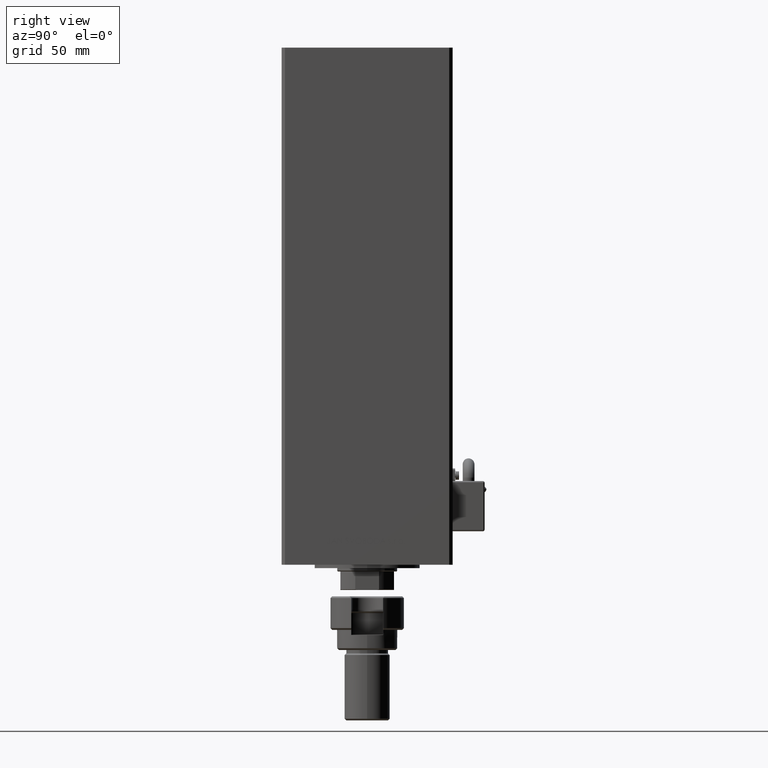
[diagram: clean part render]
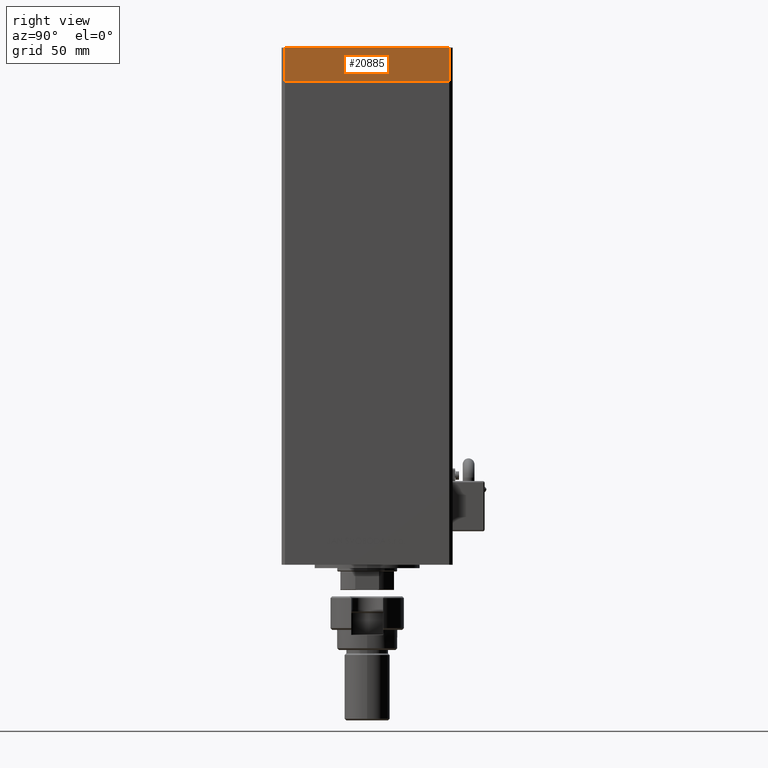
[diagram: same view with one face highlighted and labeled with its STEP entity id]
A machine part, right view. The second image highlights one B-rep face of the part: STEP entity #20885.
In plain terms, the highlighted planar face has unit normal (1, 0, 0).
Its self-contained STEP definition (entity closure, byte-faithful):
#244 = DIRECTION ( 'NONE',  ( -7.080503983578803823E-16, 1.000000000000000000, 0.000000000000000000 ) ) ;
#768 = LINE ( 'NONE', #4555, #3781 ) ;
#1076 = ORIENTED_EDGE ( 'NONE', *, *, #20227, .T. ) ;
#1704 = FACE_OUTER_BOUND ( 'NONE', #8888, .T. ) ;
#2904 = EDGE_CURVE ( 'NONE', #5529, #46818, #36944, .T. ) ;
#3781 = VECTOR ( 'NONE', #244, 1000.000000000000000 ) ;
#4555 = CARTESIAN_POINT ( 'NONE',  ( 60.00000000000001421, -48.99999999999999289, -20.00000000000000000 ) ) ;
#5219 = DIRECTION ( 'NONE',  ( 1.000000000000000000, 7.080503983578804809E-16, -0.000000000000000000 ) ) ;
#5529 = VERTEX_POINT ( 'NONE', #18492 ) ;
#7040 = DIRECTION ( 'NONE',  ( -7.080503983578803823E-16, 1.000000000000000000, 0.000000000000000000 ) ) ;
#8888 = EDGE_LOOP ( 'NONE', ( #47791, #52140, #1076, #15662 ) ) ;
#9004 = CARTESIAN_POINT ( 'NONE',  ( 60.00000000000001421, -48.99999999999999289, -20.00000000000000000 ) ) ;
#11064 = CARTESIAN_POINT ( 'NONE',  ( 60.00000000000001421, -48.99999999999999289, 0.000000000000000000 ) ) ;
#15662 = ORIENTED_EDGE ( 'NONE', *, *, #41842, .T. ) ;
#18148 = PLANE ( 'NONE',  #21026 ) ;
#18492 = CARTESIAN_POINT ( 'NONE',  ( 60.00000000000001421, -48.99999999999999289, -20.00000000000000000 ) ) ;
#18841 = VECTOR ( 'NONE', #47625, 1000.000000000000000 ) ;
#20227 = EDGE_CURVE ( 'NONE', #5529, #50184, #768, .T. ) ;
#20885 = ADVANCED_FACE ( 'NONE', ( #1704 ), #18148, .T. ) ;
#21026 = AXIS2_PLACEMENT_3D ( 'NONE', #9004, #5219, #25438 ) ;
#22410 = LINE ( 'NONE', #11064, #36877 ) ;
#23625 = LINE ( 'NONE', #44098, #18841 ) ;
#25438 = DIRECTION ( 'NONE',  ( -7.080503983578804809E-16, 1.000000000000000000, 0.000000000000000000 ) ) ;
#27110 = CARTESIAN_POINT ( 'NONE',  ( 59.99999999999994316, 49.00000000000000000, 0.000000000000000000 ) ) ;
#30336 = CARTESIAN_POINT ( 'NONE',  ( 60.00000000000001421, -48.99999999999999289, 0.000000000000000000 ) ) ;
#36605 = EDGE_CURVE ( 'NONE', #46818, #39036, #22410, .T. ) ;
#36877 = VECTOR ( 'NONE', #7040, 1000.000000000000000 ) ;
#36944 = LINE ( 'NONE', #37739, #47301 ) ;
#37739 = CARTESIAN_POINT ( 'NONE',  ( 60.00000000000001421, -48.99999999999999289, -20.00000000000000000 ) ) ;
#39036 = VERTEX_POINT ( 'NONE', #27110 ) ;
#41842 = EDGE_CURVE ( 'NONE', #50184, #39036, #23625, .T. ) ;
#44098 = CARTESIAN_POINT ( 'NONE',  ( 59.99999999999994316, 49.00000000000000000, -20.00000000000000000 ) ) ;
#45043 = DIRECTION ( 'NONE',  ( 0.000000000000000000, 0.000000000000000000, 1.000000000000000000 ) ) ;
#45983 = CARTESIAN_POINT ( 'NONE',  ( 59.99999999999994316, 49.00000000000000000, -20.00000000000000000 ) ) ;
#46818 = VERTEX_POINT ( 'NONE', #30336 ) ;
#47301 = VECTOR ( 'NONE', #45043, 1000.000000000000000 ) ;
#47625 = DIRECTION ( 'NONE',  ( 0.000000000000000000, 0.000000000000000000, 1.000000000000000000 ) ) ;
#47791 = ORIENTED_EDGE ( 'NONE', *, *, #36605, .F. ) ;
#50184 = VERTEX_POINT ( 'NONE', #45983 ) ;
#52140 = ORIENTED_EDGE ( 'NONE', *, *, #2904, .F. ) ;